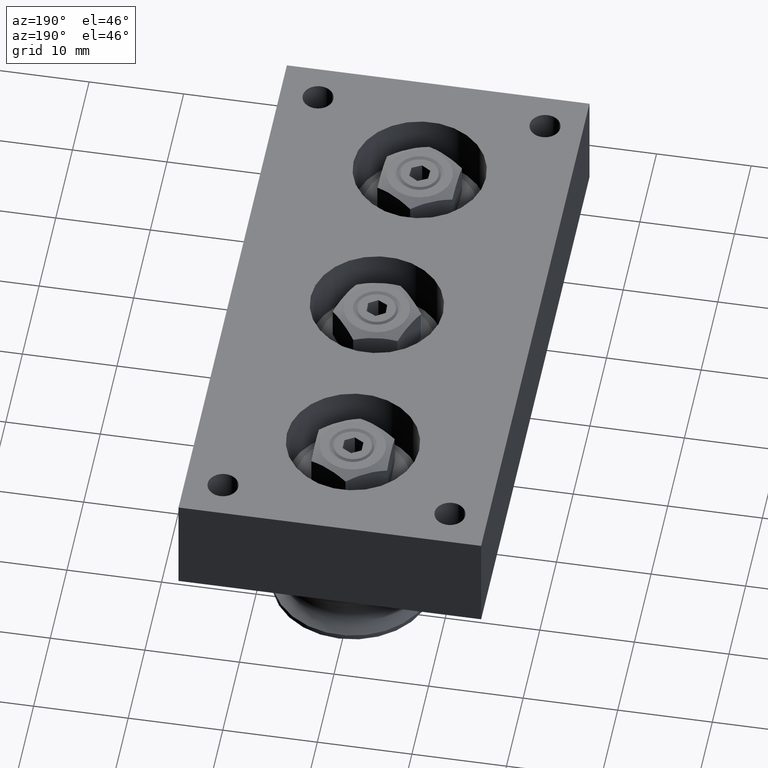
[diagram: clean part render]
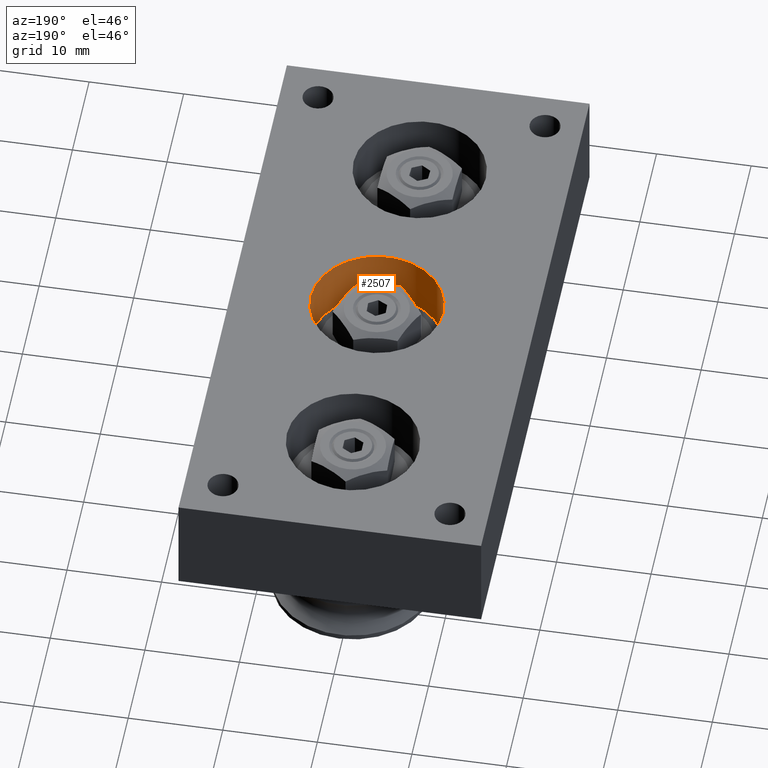
[diagram: same view with one face highlighted and labeled with its STEP entity id]
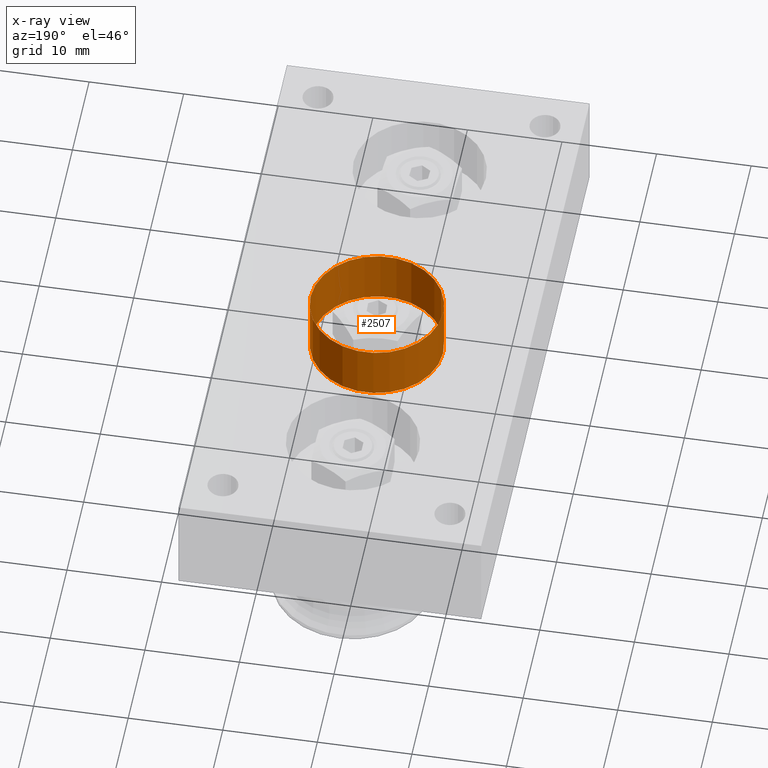
[diagram: x-ray of the same camera — body ghosted, the highlighted face saturated]
A machine part, auxiliary view. The second image highlights one B-rep face of the part: STEP entity #2507.
The next image is the same camera in x-ray: the body ghosted, the highlighted face saturated — about 0% of this face is hidden behind the body in this view.
In plain terms, the highlighted cylindrical surface (bore or boss wall) has radius 7 mm, axis along (0, 0, 1).
Its self-contained STEP definition (entity closure, byte-faithful):
#236=CYLINDRICAL_SURFACE('',#2868,7.);
#287=FACE_OUTER_BOUND('',#448,.T.);
#448=EDGE_LOOP('',(#1784,#1785,#1786,#1787));
#643=LINE('',#4063,#845);
#845=VECTOR('',#3215,7.);
#1047=CIRCLE('',#2866,7.);
#1049=CIRCLE('',#2869,7.);
#1191=VERTEX_POINT('',#4056);
#1193=VERTEX_POINT('',#4061);
#1420=EDGE_CURVE('',#1191,#1191,#1047,.T.);
#1422=EDGE_CURVE('',#1193,#1193,#1049,.T.);
#1423=EDGE_CURVE('',#1193,#1191,#643,.T.);
#1784=ORIENTED_EDGE('',*,*,#1422,.F.);
#1785=ORIENTED_EDGE('',*,*,#1423,.T.);
#1786=ORIENTED_EDGE('',*,*,#1420,.F.);
#1787=ORIENTED_EDGE('',*,*,#1423,.F.);
#2507=ADVANCED_FACE('',(#287),#236,.F.);
#2866=AXIS2_PLACEMENT_3D('',#4057,#3207,#3208);
#2868=AXIS2_PLACEMENT_3D('',#4060,#3211,#3212);
#2869=AXIS2_PLACEMENT_3D('',#4062,#3213,#3214);
#3207=DIRECTION('center_axis',(0.,0.,1.));
#3208=DIRECTION('ref_axis',(1.,0.,0.));
#3211=DIRECTION('center_axis',(0.,0.,1.));
#3212=DIRECTION('ref_axis',(1.,0.,0.));
#3213=DIRECTION('center_axis',(0.,0.,-1.));
#3214=DIRECTION('ref_axis',(1.,0.,0.));
#3215=DIRECTION('',(0.,0.,-1.));
#4056=CARTESIAN_POINT('',(-6.25,-8.57252759403147E-16,5.));
#4057=CARTESIAN_POINT('Origin',(0.749999999999997,0.,5.));
#4060=CARTESIAN_POINT('Origin',(0.749999999999997,0.,8.));
#4061=CARTESIAN_POINT('',(-6.25,-8.57252759403147E-16,11.));
#4062=CARTESIAN_POINT('Origin',(0.749999999999997,0.,11.));
#4063=CARTESIAN_POINT('',(-6.25,-8.57252759403147E-16,8.));